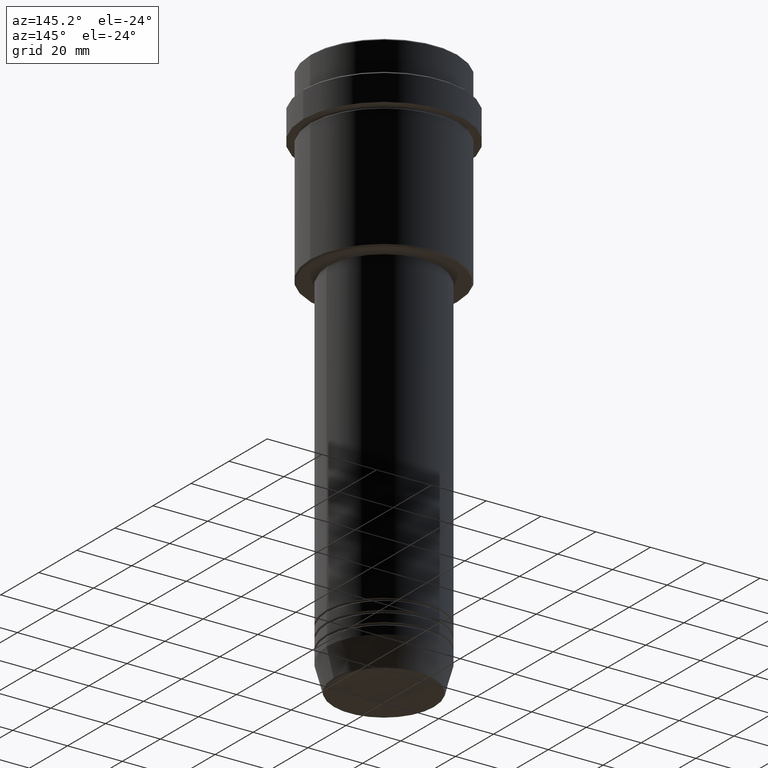
[diagram: clean part render]
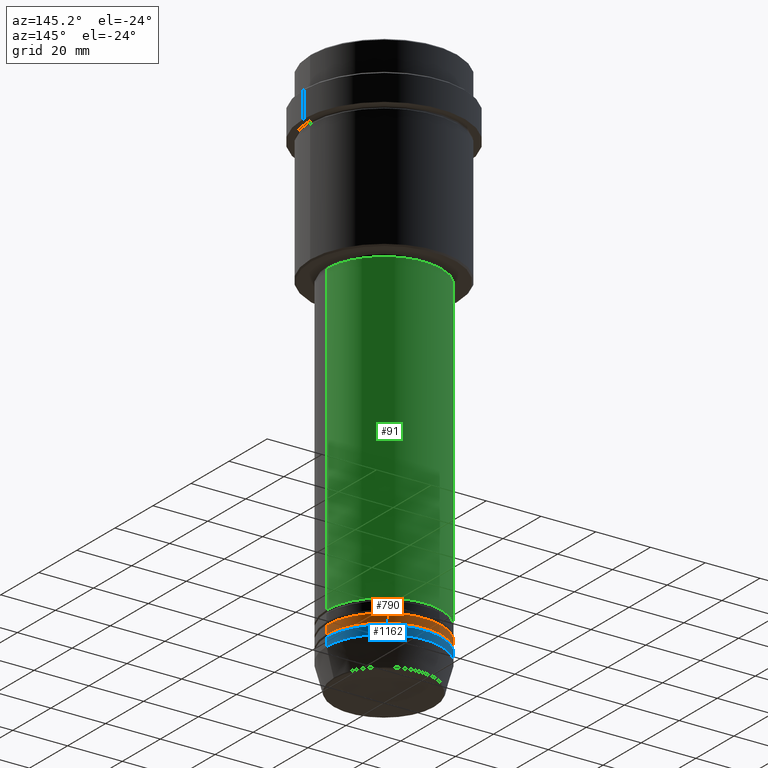
[diagram: same view with three faces highlighted in distinct colors, each labeled with its STEP entity id]
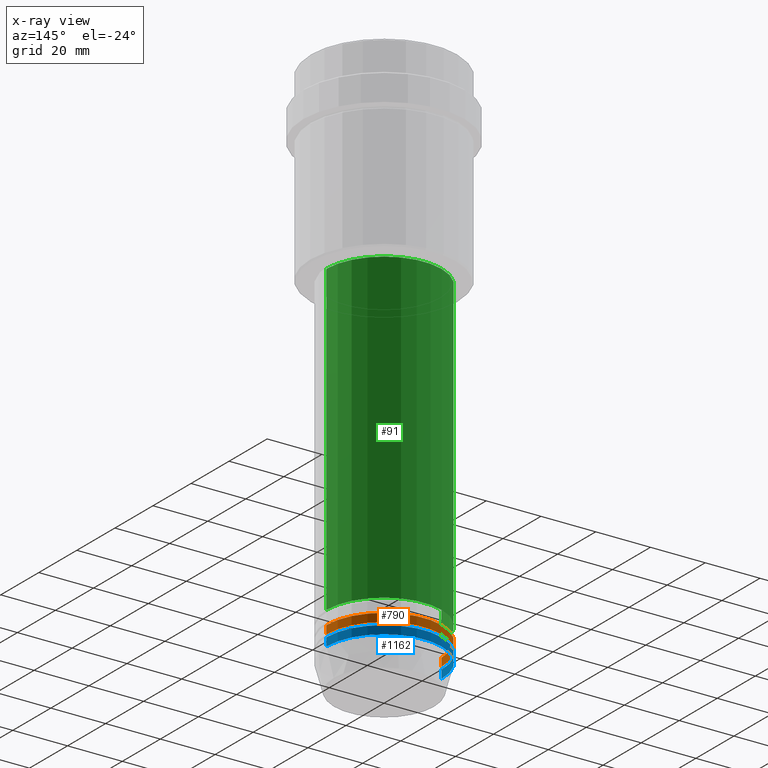
[diagram: x-ray of the same camera — body ghosted, the three highlighted faces saturated]
A machine part, auxiliary view with three faces highlighted in distinct colors.
The next image is the same camera in x-ray (body ghosted, the three faces saturated) — at least one of them is partly hidden behind the body in this view.
Their STEP definitions:

[orange] entity #790 — the highlighted cylindrical surface (partial cylindrical patch) has radius 21 mm, axis along (-0, -0, 1).
#92 = DIRECTION ( 'NONE',  ( -0.000000000000000000, -0.000000000000000000, 1.000000000000000000 ) ) ;
#126 = DIRECTION ( 'NONE',  ( 1.000000000000000000, 0.000000000000000000, 0.000000000000000000 ) ) ;
#169 = DIRECTION ( 'NONE',  ( -0.000000000000000000, -0.000000000000000000, 1.000000000000000000 ) ) ;
#178 = VERTEX_POINT ( 'NONE', #453 ) ;
#214 = DIRECTION ( 'NONE',  ( 1.000000000000000000, 0.000000000000000000, 0.000000000000000000 ) ) ;
#222 = CIRCLE ( 'NONE', #1128, 21.00000000000000000 ) ;
#271 = CIRCLE ( 'NONE', #636, 21.00000000000000000 ) ;
#300 = CARTESIAN_POINT ( 'NONE',  ( 21.00000000000000000, 0.000000000000000000, -185.9999999999998863 ) ) ;
#352 = CARTESIAN_POINT ( 'NONE',  ( 0.000000000000000000, 0.000000000000000000, -185.9999999999998863 ) ) ;
#384 = ORIENTED_EDGE ( 'NONE', *, *, #1024, .F. ) ;
#386 = CYLINDRICAL_SURFACE ( 'NONE', #1004, 21.00000000000000000 ) ;
#416 = DIRECTION ( 'NONE',  ( -0.000000000000000000, -0.000000000000000000, 1.000000000000000000 ) ) ;
#436 = DIRECTION ( 'NONE',  ( -0.000000000000000000, -0.000000000000000000, 1.000000000000000000 ) ) ;
#453 = CARTESIAN_POINT ( 'NONE',  ( -21.00000000000000000, 2.571758278209441661E-15, -188.9999999999998863 ) ) ;
#513 = LINE ( 'NONE', #1073, #906 ) ;
#533 = EDGE_CURVE ( 'NONE', #1171, #178, #271, .T. ) ;
#636 = AXIS2_PLACEMENT_3D ( 'NONE', #1399, #416, #214 ) ;
#692 = CARTESIAN_POINT ( 'NONE',  ( -21.00000000000000000, 2.571758278209441661E-15, -185.9999999999998863 ) ) ;
#711 = LINE ( 'NONE', #1262, #1062 ) ;
#790 = ADVANCED_FACE ( 'NONE', ( #813 ), #386, .T. ) ;
#813 = FACE_OUTER_BOUND ( 'NONE', #1275, .T. ) ;
#821 = ORIENTED_EDGE ( 'NONE', *, *, #1169, .T. ) ;
#835 = DIRECTION ( 'NONE',  ( -0.000000000000000000, -0.000000000000000000, 1.000000000000000000 ) ) ;
#906 = VECTOR ( 'NONE', #92, 1000.000000000000000 ) ;
#929 = CARTESIAN_POINT ( 'NONE',  ( 21.00000000000000000, 0.000000000000000000, -188.9999999999998863 ) ) ;
#1004 = AXIS2_PLACEMENT_3D ( 'NONE', #1139, #169, #1240 ) ;
#1024 = EDGE_CURVE ( 'NONE', #1110, #1375, #222, .T. ) ;
#1062 = VECTOR ( 'NONE', #835, 1000.000000000000000 ) ;
#1073 = CARTESIAN_POINT ( 'NONE',  ( 21.00000000000000000, 0.000000000000000000, 0.000000000000000000 ) ) ;
#1110 = VERTEX_POINT ( 'NONE', #300 ) ;
#1128 = AXIS2_PLACEMENT_3D ( 'NONE', #352, #436, #126 ) ;
#1139 = CARTESIAN_POINT ( 'NONE',  ( 0.000000000000000000, 0.000000000000000000, 0.000000000000000000 ) ) ;
#1145 = ORIENTED_EDGE ( 'NONE', *, *, #1241, .F. ) ;
#1169 = EDGE_CURVE ( 'NONE', #178, #1375, #711, .T. ) ;
#1171 = VERTEX_POINT ( 'NONE', #929 ) ;
#1240 = DIRECTION ( 'NONE',  ( 1.000000000000000000, 0.000000000000000000, 0.000000000000000000 ) ) ;
#1241 = EDGE_CURVE ( 'NONE', #1171, #1110, #513, .T. ) ;
#1262 = CARTESIAN_POINT ( 'NONE',  ( -21.00000000000000000, 2.571758278209441661E-15, 0.000000000000000000 ) ) ;
#1275 = EDGE_LOOP ( 'NONE', ( #1314, #821, #384, #1145 ) ) ;
#1314 = ORIENTED_EDGE ( 'NONE', *, *, #533, .T. ) ;
#1375 = VERTEX_POINT ( 'NONE', #692 ) ;
#1399 = CARTESIAN_POINT ( 'NONE',  ( 0.000000000000000000, 0.000000000000000000, -188.9999999999998863 ) ) ;

[blue] entity #1162 — the highlighted cylindrical surface (partial cylindrical patch) has radius 21 mm, axis along (-0, -0, 1).
#28 = ORIENTED_EDGE ( 'NONE', *, *, #402, .T. ) ;
#34 = VECTOR ( 'NONE', #1167, 1000.000000000000000 ) ;
#93 = CARTESIAN_POINT ( 'NONE',  ( 21.00000000000000000, 0.000000000000000000, -193.0000000000000000 ) ) ;
#106 = VECTOR ( 'NONE', #1060, 1000.000000000000000 ) ;
#175 = CARTESIAN_POINT ( 'NONE',  ( -21.00000000000000000, 2.571758278209441661E-15, -190.0000000000000000 ) ) ;
#272 = DIRECTION ( 'NONE',  ( 1.000000000000000000, 0.000000000000000000, 0.000000000000000000 ) ) ;
#395 = CARTESIAN_POINT ( 'NONE',  ( -21.00000000000000000, 2.571758278209441661E-15, 0.000000000000000000 ) ) ;
#402 = EDGE_CURVE ( 'NONE', #517, #498, #728, .T. ) ;
#424 = AXIS2_PLACEMENT_3D ( 'NONE', #974, #1172, #1090 ) ;
#498 = VERTEX_POINT ( 'NONE', #877 ) ;
#517 = VERTEX_POINT ( 'NONE', #93 ) ;
#528 = EDGE_LOOP ( 'NONE', ( #28, #632, #766, #997 ) ) ;
#602 = LINE ( 'NONE', #395, #34 ) ;
#632 = ORIENTED_EDGE ( 'NONE', *, *, #1143, .T. ) ;
#717 = CARTESIAN_POINT ( 'NONE',  ( 0.000000000000000000, 0.000000000000000000, 0.000000000000000000 ) ) ;
#724 = AXIS2_PLACEMENT_3D ( 'NONE', #717, #1234, #272 ) ;
#728 = CIRCLE ( 'NONE', #1273, 21.00000000000000000 ) ;
#738 = VERTEX_POINT ( 'NONE', #175 ) ;
#766 = ORIENTED_EDGE ( 'NONE', *, *, #1293, .F. ) ;
#803 = FACE_OUTER_BOUND ( 'NONE', #528, .T. ) ;
#877 = CARTESIAN_POINT ( 'NONE',  ( -21.00000000000000000, 2.571758278209441661E-15, -193.0000000000000000 ) ) ;
#974 = CARTESIAN_POINT ( 'NONE',  ( 0.000000000000000000, 0.000000000000000000, -190.0000000000000000 ) ) ;
#997 = ORIENTED_EDGE ( 'NONE', *, *, #1098, .F. ) ;
#1019 = VERTEX_POINT ( 'NONE', #1210 ) ;
#1027 = DIRECTION ( 'NONE',  ( 1.000000000000000000, 0.000000000000000000, 0.000000000000000000 ) ) ;
#1032 = LINE ( 'NONE', #1277, #106 ) ;
#1040 = CIRCLE ( 'NONE', #424, 21.00000000000000000 ) ;
#1050 = CARTESIAN_POINT ( 'NONE',  ( 0.000000000000000000, 0.000000000000000000, -193.0000000000000000 ) ) ;
#1060 = DIRECTION ( 'NONE',  ( -0.000000000000000000, -0.000000000000000000, 1.000000000000000000 ) ) ;
#1090 = DIRECTION ( 'NONE',  ( 1.000000000000000000, 0.000000000000000000, 0.000000000000000000 ) ) ;
#1098 = EDGE_CURVE ( 'NONE', #517, #1019, #1032, .T. ) ;
#1131 = DIRECTION ( 'NONE',  ( -0.000000000000000000, -0.000000000000000000, 1.000000000000000000 ) ) ;
#1143 = EDGE_CURVE ( 'NONE', #498, #738, #602, .T. ) ;
#1162 = ADVANCED_FACE ( 'NONE', ( #803 ), #1388, .T. ) ;
#1167 = DIRECTION ( 'NONE',  ( -0.000000000000000000, -0.000000000000000000, 1.000000000000000000 ) ) ;
#1172 = DIRECTION ( 'NONE',  ( -0.000000000000000000, -0.000000000000000000, 1.000000000000000000 ) ) ;
#1210 = CARTESIAN_POINT ( 'NONE',  ( 21.00000000000000000, 0.000000000000000000, -190.0000000000000000 ) ) ;
#1234 = DIRECTION ( 'NONE',  ( -0.000000000000000000, -0.000000000000000000, 1.000000000000000000 ) ) ;
#1273 = AXIS2_PLACEMENT_3D ( 'NONE', #1050, #1131, #1027 ) ;
#1277 = CARTESIAN_POINT ( 'NONE',  ( 21.00000000000000000, 0.000000000000000000, 0.000000000000000000 ) ) ;
#1293 = EDGE_CURVE ( 'NONE', #1019, #738, #1040, .T. ) ;
#1388 = CYLINDRICAL_SURFACE ( 'NONE', #724, 21.00000000000000000 ) ;

[green] entity #91 — the highlighted cylindrical surface (partial cylindrical patch) has radius 21 mm, axis along (-0, -0, 1).
#12 = LINE ( 'NONE', #458, #1035 ) ;
#21 = DIRECTION ( 'NONE',  ( -0.000000000000000000, -0.000000000000000000, 1.000000000000000000 ) ) ;
#91 = ADVANCED_FACE ( 'NONE', ( #523 ), #98, .T. ) ;
#94 = CARTESIAN_POINT ( 'NONE',  ( 0.000000000000000000, 0.000000000000000000, 0.000000000000000000 ) ) ;
#98 = CYLINDRICAL_SURFACE ( 'NONE', #406, 21.00000000000000000 ) ;
#111 = CIRCLE ( 'NONE', #843, 21.00000000000000000 ) ;
#167 = EDGE_CURVE ( 'NONE', #714, #1013, #590, .T. ) ;
#177 = CARTESIAN_POINT ( 'NONE',  ( 21.00000000000000000, 0.000000000000000000, -180.9999999999999147 ) ) ;
#225 = ORIENTED_EDGE ( 'NONE', *, *, #167, .F. ) ;
#247 = CARTESIAN_POINT ( 'NONE',  ( 0.000000000000000000, 0.000000000000000000, -69.00000000000000000 ) ) ;
#249 = LINE ( 'NONE', #1330, #1267 ) ;
#348 = DIRECTION ( 'NONE',  ( -0.000000000000000000, -0.000000000000000000, 1.000000000000000000 ) ) ;
#380 = VERTEX_POINT ( 'NONE', #177 ) ;
#406 = AXIS2_PLACEMENT_3D ( 'NONE', #94, #1390, #417 ) ;
#417 = DIRECTION ( 'NONE',  ( 1.000000000000000000, 0.000000000000000000, 0.000000000000000000 ) ) ;
#429 = EDGE_CURVE ( 'NONE', #380, #1255, #111, .T. ) ;
#450 = CARTESIAN_POINT ( 'NONE',  ( 21.00000000000000000, 0.000000000000000000, -69.00000000000000000 ) ) ;
#458 = CARTESIAN_POINT ( 'NONE',  ( 21.00000000000000000, 0.000000000000000000, 0.000000000000000000 ) ) ;
#486 = DIRECTION ( 'NONE',  ( 1.000000000000000000, 0.000000000000000000, 0.000000000000000000 ) ) ;
#523 = FACE_OUTER_BOUND ( 'NONE', #1235, .T. ) ;
#548 = ORIENTED_EDGE ( 'NONE', *, *, #945, .F. ) ;
#590 = CIRCLE ( 'NONE', #1201, 21.00000000000000000 ) ;
#685 = CARTESIAN_POINT ( 'NONE',  ( -21.00000000000000000, 2.571758278209441661E-15, -69.00000000000000000 ) ) ;
#714 = VERTEX_POINT ( 'NONE', #450 ) ;
#806 = ORIENTED_EDGE ( 'NONE', *, *, #994, .T. ) ;
#836 = CARTESIAN_POINT ( 'NONE',  ( 0.000000000000000000, 0.000000000000000000, -180.9999999999999147 ) ) ;
#843 = AXIS2_PLACEMENT_3D ( 'NONE', #836, #1270, #486 ) ;
#945 = EDGE_CURVE ( 'NONE', #380, #714, #12, .T. ) ;
#994 = EDGE_CURVE ( 'NONE', #1255, #1013, #249, .T. ) ;
#1013 = VERTEX_POINT ( 'NONE', #685 ) ;
#1021 = DIRECTION ( 'NONE',  ( 1.000000000000000000, 0.000000000000000000, 0.000000000000000000 ) ) ;
#1035 = VECTOR ( 'NONE', #348, 1000.000000000000000 ) ;
#1105 = DIRECTION ( 'NONE',  ( -0.000000000000000000, -0.000000000000000000, 1.000000000000000000 ) ) ;
#1201 = AXIS2_PLACEMENT_3D ( 'NONE', #247, #1105, #1021 ) ;
#1235 = EDGE_LOOP ( 'NONE', ( #1285, #806, #225, #548 ) ) ;
#1255 = VERTEX_POINT ( 'NONE', #1393 ) ;
#1267 = VECTOR ( 'NONE', #21, 1000.000000000000000 ) ;
#1270 = DIRECTION ( 'NONE',  ( -0.000000000000000000, -0.000000000000000000, 1.000000000000000000 ) ) ;
#1285 = ORIENTED_EDGE ( 'NONE', *, *, #429, .T. ) ;
#1330 = CARTESIAN_POINT ( 'NONE',  ( -21.00000000000000000, 2.571758278209441661E-15, 0.000000000000000000 ) ) ;
#1390 = DIRECTION ( 'NONE',  ( -0.000000000000000000, -0.000000000000000000, 1.000000000000000000 ) ) ;
#1393 = CARTESIAN_POINT ( 'NONE',  ( -21.00000000000000000, 2.571758278209441661E-15, -180.9999999999999147 ) ) ;